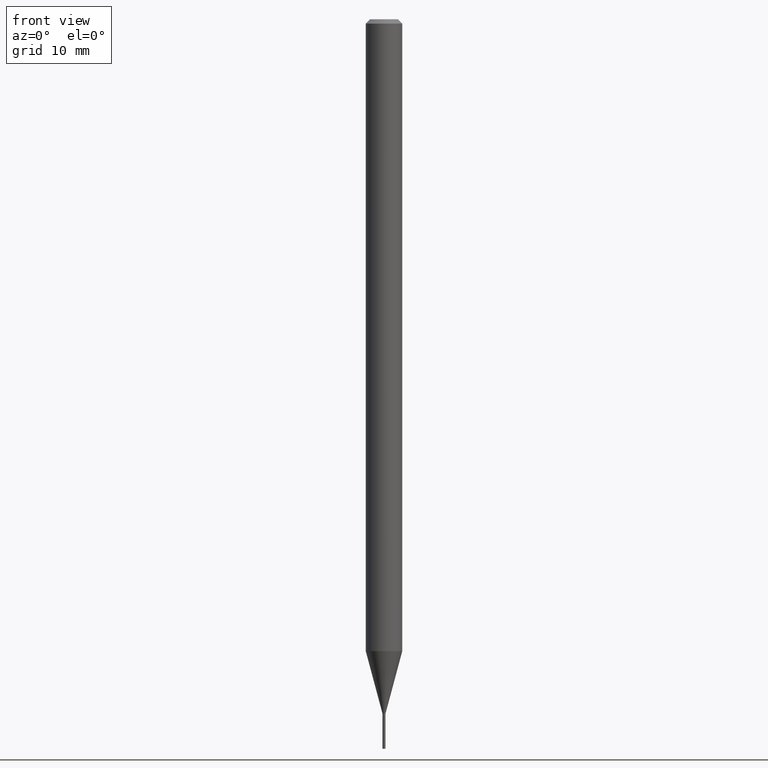
[diagram: clean part render]
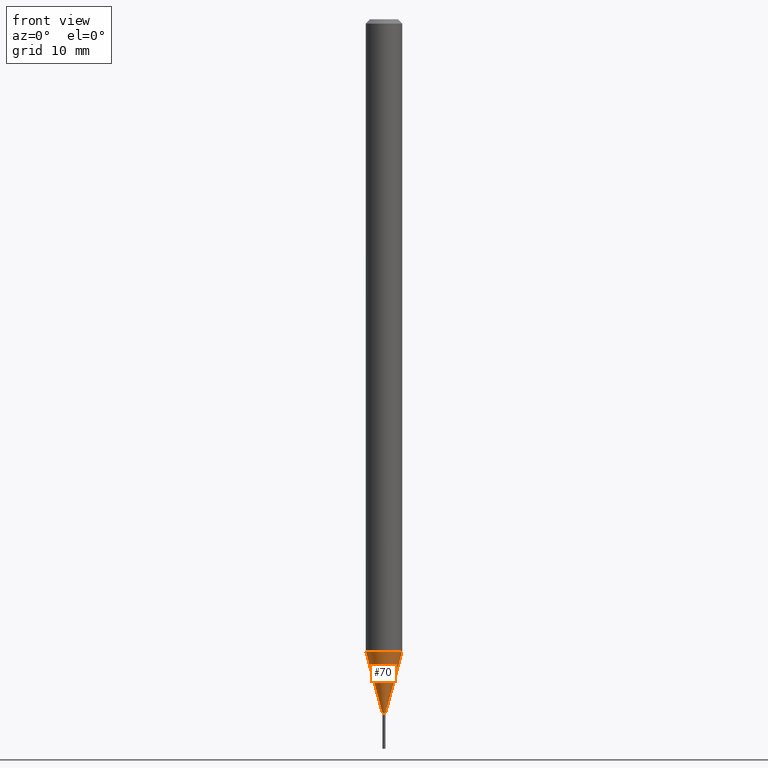
[diagram: same view with one face highlighted and labeled with its STEP entity id]
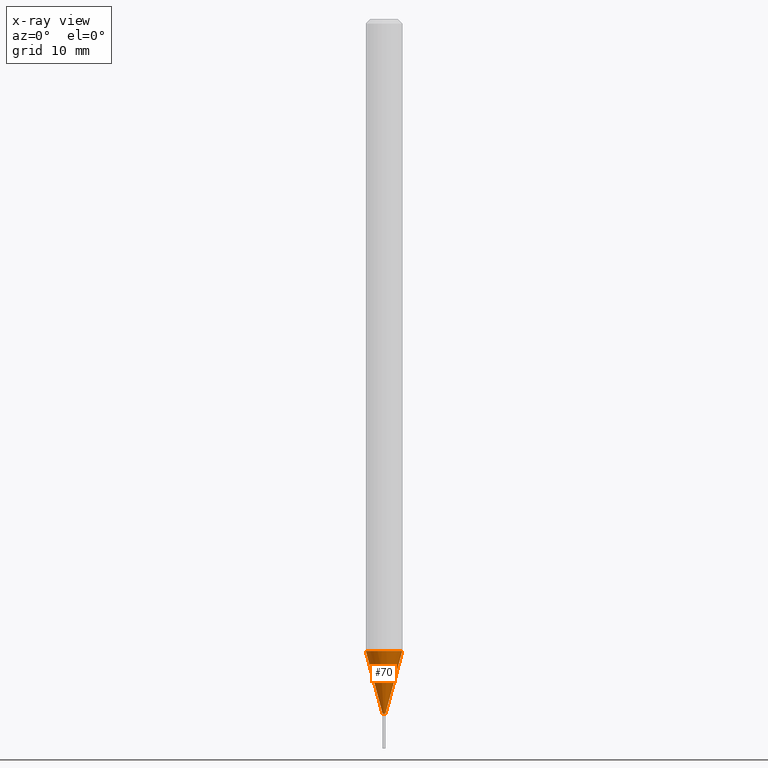
[diagram: x-ray of the same camera — body ghosted, the highlighted face saturated]
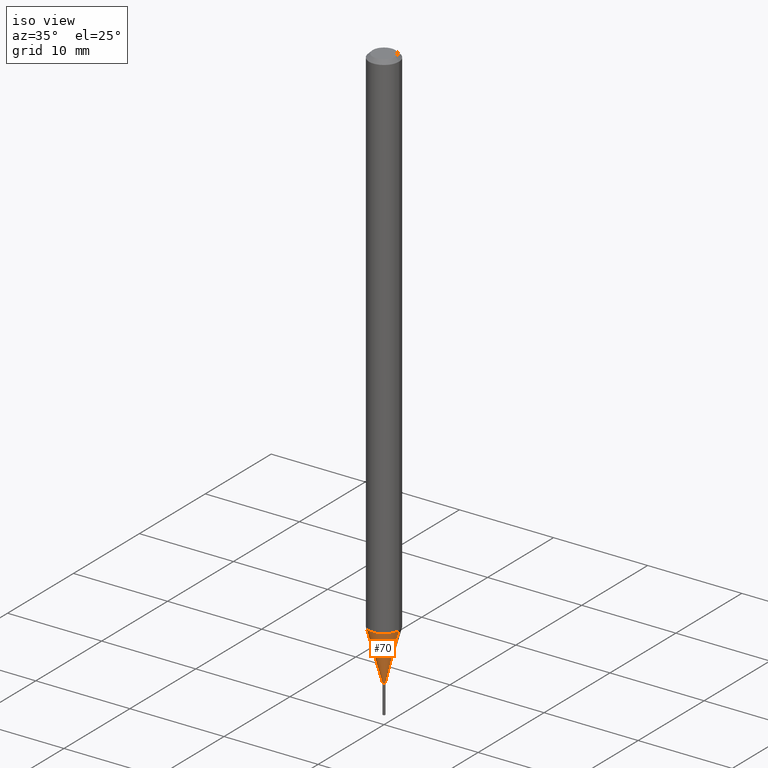
[diagram: same view with one face highlighted and labeled with its STEP entity id]
A machine part, front view. The second image highlights one B-rep face of the part: STEP entity #70.
The next image is the same camera in x-ray: the body ghosted, the highlighted face saturated — about 0% of this face is hidden behind the body in this view.
A second angle (iso view) of the same face is appended — the face is thin or edge-on in the first view.
In plain terms, the highlighted conical surface has half-angle 15 deg.
Its self-contained STEP definition (entity closure, byte-faithful):
#1 = CARTESIAN_POINT ( 'NONE',  ( -0.004999999999999383410, -7.695293822808216788E-15, -2.379999999999999893 ) ) ;
#8 = ORIENTED_EDGE ( 'NONE', *, *, #440, .F. ) ;
#32 = DIRECTION ( 'NONE',  ( 1.000000000000000000, -6.982962677686223323E-15, 0.000000000000000000 ) ) ;
#33 = AXIS2_PLACEMENT_3D ( 'NONE', #314, #162, #136 ) ;
#50 = DIRECTION ( 'NONE',  ( -2.445468806185136597E-29, 3.491481338843145583E-15, 1.000000000000000000 ) ) ;
#51 = LINE ( 'NONE', #121, #319 ) ;
#70 = ADVANCED_FACE ( 'NONE', ( #408 ), #226, .T. ) ;
#72 = EDGE_LOOP ( 'NONE', ( #8, #449, #330, #458 ) ) ;
#79 = VERTEX_POINT ( 'NONE', #242 ) ;
#102 = EDGE_CURVE ( 'NONE', #292, #444, #305, .T. ) ;
#105 = DIRECTION ( 'NONE',  ( 0.2588190451025214611, 1.565188264969620982E-15, 0.9659258262890679791 ) ) ;
#121 = CARTESIAN_POINT ( 'NONE',  ( -0.004999999999999383410, -8.274198449658685635E-15, -2.379999999999999893 ) ) ;
#136 = DIRECTION ( 'NONE',  ( 1.000000000000000000, -6.982962677686262766E-15, 0.000000000000000000 ) ) ;
#162 = DIRECTION ( 'NONE',  ( -2.445468806185136597E-29, 3.491481338843145583E-15, 1.000000000000000000 ) ) ;
#168 = CARTESIAN_POINT ( 'NONE',  ( 5.820215758720625190E-29, -8.309725586446686731E-15, -2.379999999999999893 ) ) ;
#181 = CARTESIAN_POINT ( 'NONE',  ( 0.06249999999999999306, -7.996913573163202227E-15, -2.165407078564788090 ) ) ;
#226 = CONICAL_SURFACE ( 'NONE', #441, 0.004999999999999383410, 0.2617993877991501850 ) ;
#227 = AXIS2_PLACEMENT_3D ( 'NONE', #168, #253, #32 ) ;
#242 = CARTESIAN_POINT ( 'NONE',  ( 0.004999999999999383410, -8.344640399835113647E-15, -2.379999999999999893 ) ) ;
#253 = DIRECTION ( 'NONE',  ( -2.445468806185136597E-29, 3.491481338843145583E-15, 1.000000000000000000 ) ) ;
#284 = CARTESIAN_POINT ( 'NONE',  ( -0.06249999999999999306, -7.116389195957747942E-15, -2.165407078564788090 ) ) ;
#290 = VECTOR ( 'NONE', #105, 39.37007874015748143 ) ;
#292 = VERTEX_POINT ( 'NONE', #284 ) ;
#305 = CIRCLE ( 'NONE', #33, 0.06250000000000000000 ) ;
#314 = CARTESIAN_POINT ( 'NONE',  ( 5.295435463322675886E-29, -7.560478405807810558E-15, -2.165407078564788090 ) ) ;
#319 = VECTOR ( 'NONE', #448, 39.37007874015748143 ) ;
#330 = ORIENTED_EDGE ( 'NONE', *, *, #390, .T. ) ;
#356 = CARTESIAN_POINT ( 'NONE',  ( 0.004999999999999383410, -8.344640399835113647E-15, -2.379999999999999893 ) ) ;
#358 = EDGE_CURVE ( 'NONE', #383, #79, #411, .T. ) ;
#371 = CARTESIAN_POINT ( 'NONE',  ( 5.820215758720625190E-29, -8.309725586446686731E-15, -2.379999999999999893 ) ) ;
#383 = VERTEX_POINT ( 'NONE', #1 ) ;
#390 = EDGE_CURVE ( 'NONE', #79, #444, #431, .T. ) ;
#408 = FACE_OUTER_BOUND ( 'NONE', #72, .T. ) ;
#411 = CIRCLE ( 'NONE', #227, 0.004999999999999383410 ) ;
#422 = DIRECTION ( 'NONE',  ( 1.000000000000000000, -6.982962677686223323E-15, 0.000000000000000000 ) ) ;
#431 = LINE ( 'NONE', #356, #290 ) ;
#440 = EDGE_CURVE ( 'NONE', #383, #292, #51, .T. ) ;
#441 = AXIS2_PLACEMENT_3D ( 'NONE', #371, #50, #422 ) ;
#444 = VERTEX_POINT ( 'NONE', #181 ) ;
#448 = DIRECTION ( 'NONE',  ( -0.2588190451025214611, 5.211531920934550253E-15, 0.9659258262890679791 ) ) ;
#449 = ORIENTED_EDGE ( 'NONE', *, *, #358, .T. ) ;
#458 = ORIENTED_EDGE ( 'NONE', *, *, #102, .F. ) ;